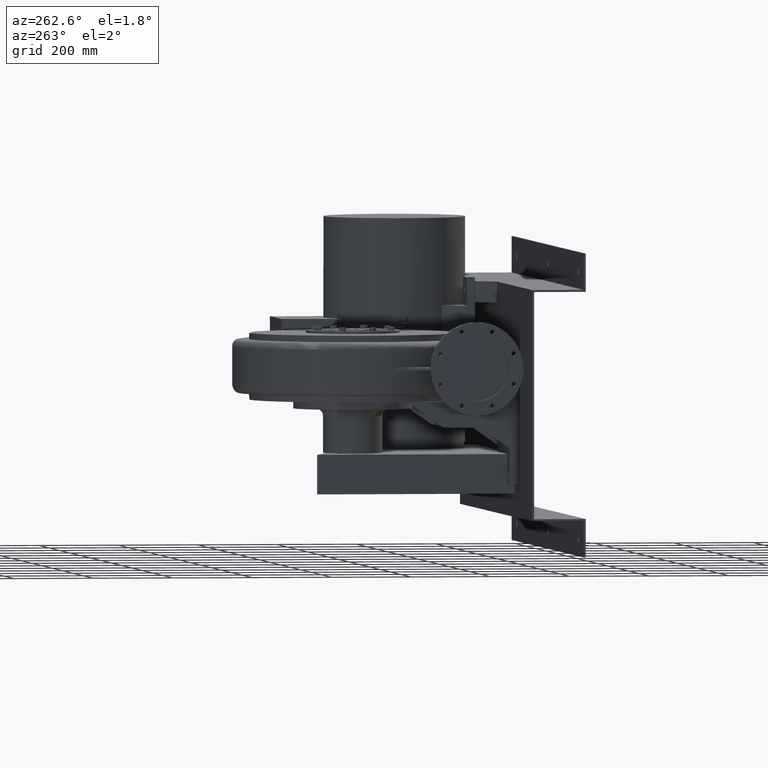
[diagram: clean part render]
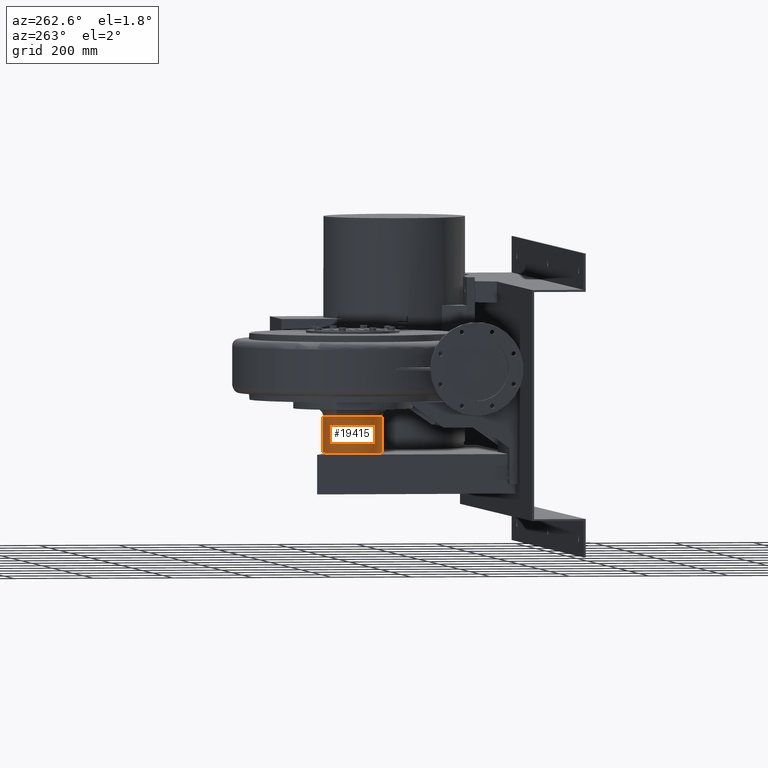
[diagram: same view with one face highlighted and labeled with its STEP entity id]
A machine part, auxiliary view. The second image highlights one B-rep face of the part: STEP entity #19415.
In plain terms, the highlighted cylindrical surface (bore or boss wall) has radius 75 mm, axis along (0, 0, 1).
Its self-contained STEP definition (entity closure, byte-faithful):
#19384=CARTESIAN_POINT('',(15.000000000000071,89.999999999999787,-216.5));
#19385=VERTEX_POINT('',#19384);
#19386=CARTESIAN_POINT('',(15.000000000000071,14.999999999999787,-216.5));
#19387=DIRECTION('',(0.0,0.0,1.0));
#19388=DIRECTION('',(0.0,1.0,0.0));
#19389=AXIS2_PLACEMENT_3D('',#19386,#19387,#19388);
#19390=CIRCLE('',#19389,75.0);
#19391=EDGE_CURVE('',#19385,#19385,#19390,.T.);
#19396=CARTESIAN_POINT('',(15.000000000000071,14.999999999999797,-170.99999999999994));
#19397=DIRECTION('',(0.0,2.671213E-016,1.0));
#19398=DIRECTION('',(0.0,1.0,0.0));
#19399=AXIS2_PLACEMENT_3D('',#19396,#19397,#19398);
#19400=CYLINDRICAL_SURFACE('',#19399,74.999999999999957);
#19401=CARTESIAN_POINT('',(15.000000000000071,89.999999999999716,-125.49999999999999));
#19402=VERTEX_POINT('',#19401);
#19403=CARTESIAN_POINT('',(15.000000000000071,14.999999999999812,-125.49999999999997));
#19404=DIRECTION('',(0.0,0.0,1.0));
#19405=DIRECTION('',(0.0,1.0,0.0));
#19406=AXIS2_PLACEMENT_3D('',#19403,#19404,#19405);
#19407=CIRCLE('',#19406,74.999999999999901);
#19408=EDGE_CURVE('',#19402,#19402,#19407,.T.);
#19409=ORIENTED_EDGE('',*,*,#19408,.F.);
#19410=EDGE_LOOP('',(#19409));
#19411=FACE_OUTER_BOUND('',#19410,.T.);
#19412=ORIENTED_EDGE('',*,*,#19391,.T.);
#19413=EDGE_LOOP('',(#19412));
#19414=FACE_BOUND('',#19413,.T.);
#19415=ADVANCED_FACE('',(#19411,#19414),#19400,.T.);